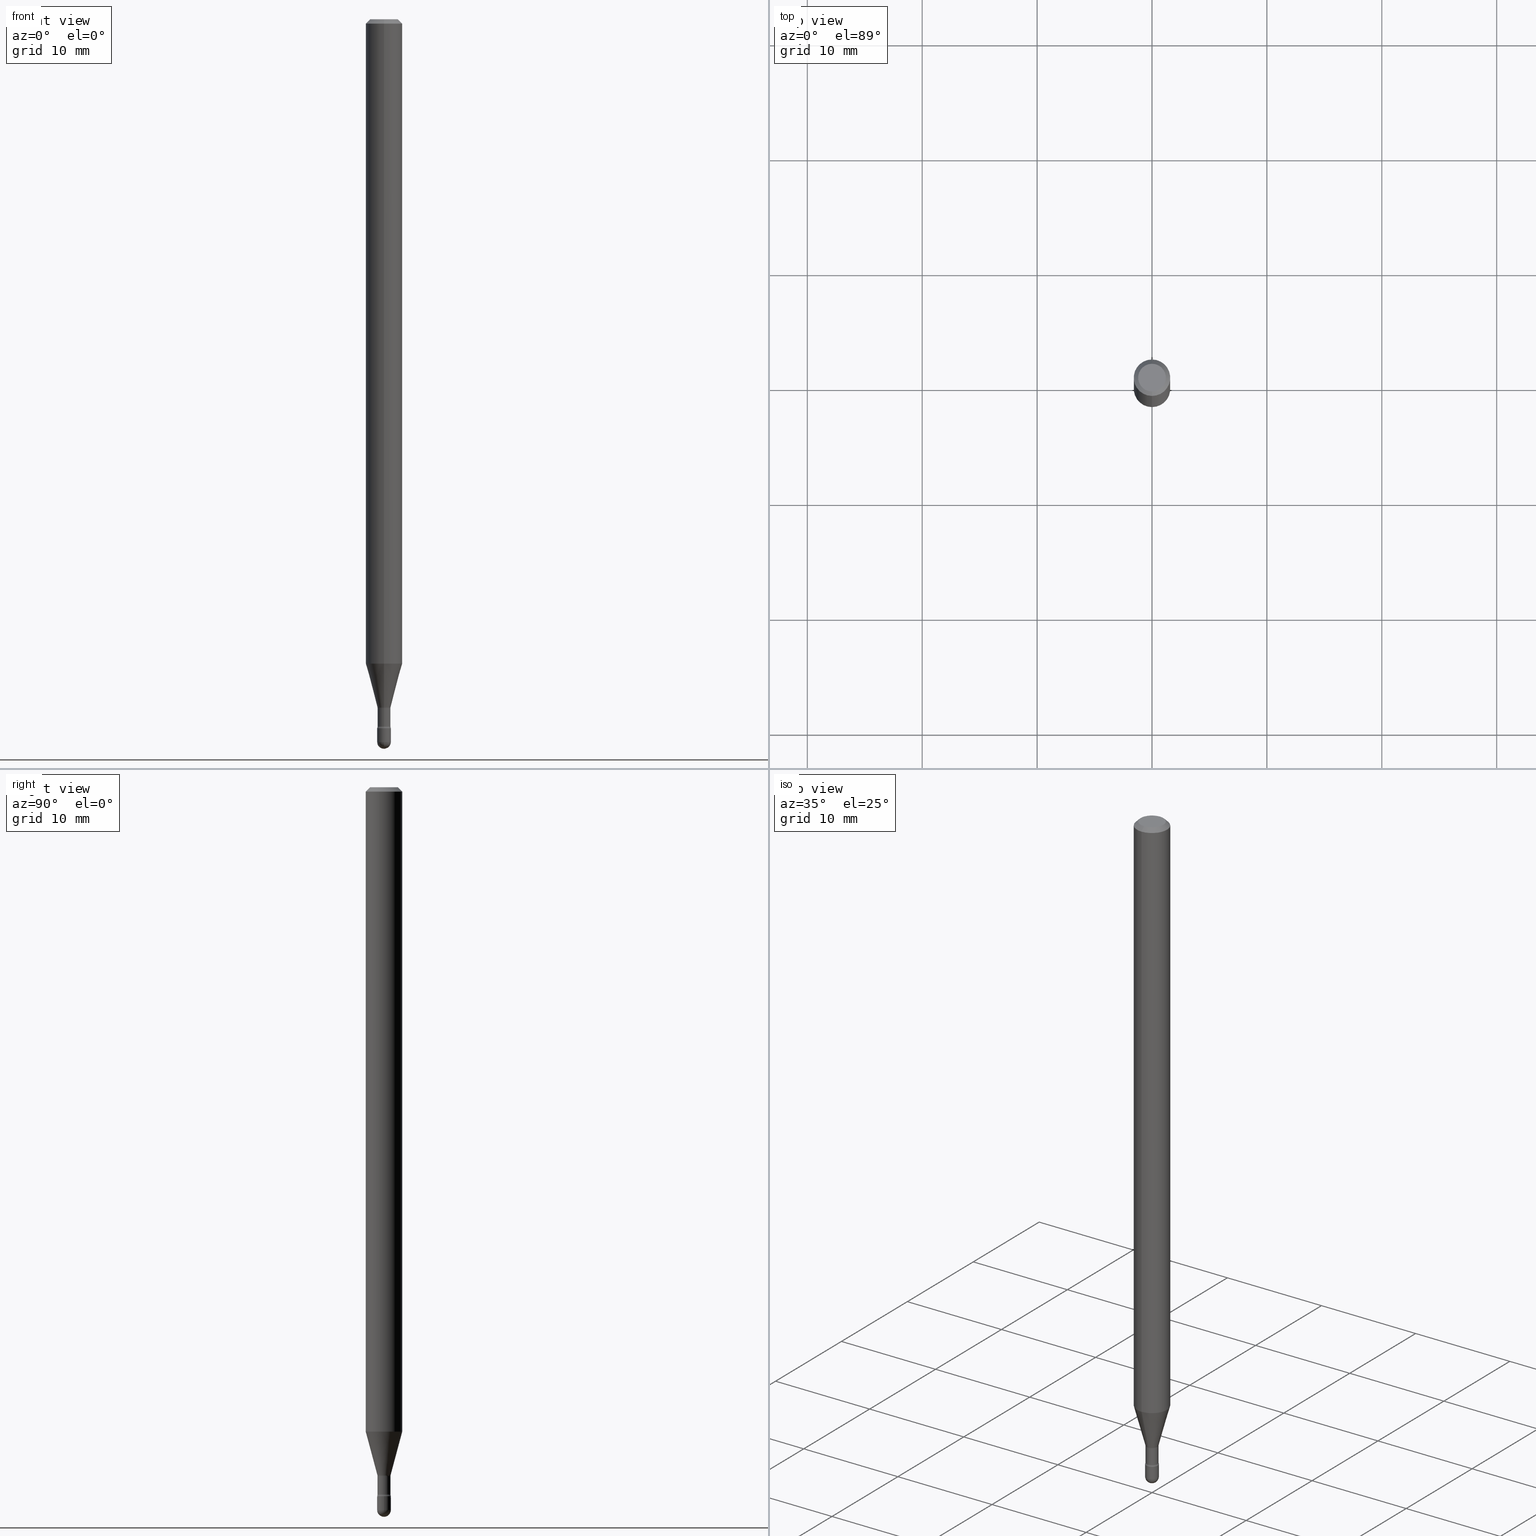
[diagram: canonical four-view strip — front | top / right | iso, engineering-drawing reading convention]
A machine part, canonical four-view strip (front | top / right | iso — engineering-drawing reading convention). The complete STEP part file that produces these views, byte-faithful:
ISO-10303-21;
HEADER;
FILE_DESCRIPTION (( 'STEP AP203' ),
    '1' );
FILE_NAME ('09473.STEP',
    '2024-04-09T23:35:01',
    ( '' ),
    ( '' ),
    'SwSTEP 2.0',
    'SolidWorks 2023',
    '' );
FILE_SCHEMA (( 'CONFIG_CONTROL_DESIGN' ));
ENDSEC;

DATA;
#1 = APPROVAL ( #215, 'UNSPECIFIED' ) ;
#2 = DIRECTION ( 'NONE',  ( 1.000000000000000000, -6.982962677686265922E-15, 4.876176775795935793E-29 ) ) ;
#3 = EDGE_LOOP ( 'NONE', ( #441, #417, #334, #363 ) ) ;
#4 = EDGE_CURVE ( 'NONE', #443, #472, #119, .T. ) ;
#5 = AXIS2_PLACEMENT_3D ( 'NONE', #219, #269, #136 ) ;
#6 = AXIS2_PLACEMENT_3D ( 'NONE', #392, #307, #483 ) ;
#7 = EDGE_LOOP ( 'NONE', ( #540, #252, #132, #71 ) ) ;
#8 = CONICAL_SURFACE ( 'NONE', #511, 0.06250000000000000000, 0.7853981633974483900 ) ;
#9 = DIRECTION ( 'NONE',  ( 1.000000000000000000, -6.982962677686227268E-15, 0.000000000000000000 ) ) ;
#10 = PERSON_AND_ORGANIZATION_ROLE ( 'classification_officer' ) ;
#11 = ORIENTED_EDGE ( 'NONE', *, *, #360, .F. ) ;
#12 = LINE ( 'NONE', #538, #322 ) ;
#13 = DATE_AND_TIME ( #53, #344 ) ;
#14 = EDGE_LOOP ( 'NONE', ( #107, #128, #210, #454 ) ) ;
#15 = EDGE_LOOP ( 'NONE', ( #320, #495, #312, #296 ) ) ;
#16 = CIRCLE ( 'NONE', #77, 0.02210000000000000159 ) ;
#17 = AXIS2_PLACEMENT_3D ( 'NONE', #41, #566, #76 ) ;
#18 = ORIENTED_EDGE ( 'NONE', *, *, #250, .F. ) ;
#19 = DIRECTION ( 'NONE',  ( -2.445468806185136597E-29, 3.491481338843145583E-15, 1.000000000000000000 ) ) ;
#20 = ORIENTED_EDGE ( 'NONE', *, *, #276, .T. ) ;
#21 = CARTESIAN_POINT ( 'NONE',  ( 2.023465601364097511E-45, -2.889165055145571576E-31, -8.274621583700891195E-17 ) ) ;
#22 = ORIENTED_EDGE ( 'NONE', *, *, #254, .T. ) ;
#23 = FACE_OUTER_BOUND ( 'NONE', #29, .T. ) ;
#24 = TOROIDAL_SURFACE ( 'NONE', #134, 0.03710000000000006348, 0.01499999999999999424 ) ;
#25 = VERTEX_POINT ( 'NONE', #99 ) ;
#26 = DIRECTION ( 'NONE',  ( -2.438088387897960049E-29, 3.491481338843145188E-15, 1.000000000000000000 ) ) ;
#27 = DIRECTION ( 'NONE',  ( -2.445456806742390166E-29, 3.491498522728124281E-15, 1.000000000000000000 ) ) ;
#28 = CC_DESIGN_PERSON_AND_ORGANIZATION_ASSIGNMENT ( #85, #422, ( #245 ) ) ;
#29 = EDGE_LOOP ( 'NONE', ( #152, #20 ) ) ;
#30 = EDGE_CURVE ( 'NONE', #377, #34, #435, .T. ) ;
#31 = PERSON ( 'UNSPECIFIED', 'UNSPECIFIED', 'UNSPECIFIED', ('UNSPECIFIED'), ('UNSPECIFIED'), ('UNSPECIFIED') ) ;
#32 = CARTESIAN_POINT ( 'NONE',  ( 1.669775429036828812E-16, 0.02349999999999151726, -2.429000000000000270 ) ) ;
#33 = CARTESIAN_POINT ( 'NONE',  ( 1.620037437533623579E-16, 0.02209999999999160900, -2.422672283192177645 ) ) ;
#34 = VERTEX_POINT ( 'NONE', #402 ) ;
#35 = CIRCLE ( 'NONE', #214, 0.01499999999999999424 ) ;
#36 = CC_DESIGN_APPROVAL ( #512, ( #187 ) ) ;
#37 = PERSON_AND_ORGANIZATION ( #31, #203 ) ;
#38 = ORIENTED_EDGE ( 'NONE', *, *, #154, .F. ) ;
#39 = PERSON_AND_ORGANIZATION ( #31, #203 ) ;
#40 = CARTESIAN_POINT ( 'NONE',  ( 5.924540425438438156E-29, -8.458756697819860632E-15, -2.422672283192177645 ) ) ;
#41 = CARTESIAN_POINT ( 'NONE',  ( 5.940014583577266287E-29, -8.480849911706614347E-15, -2.429000000000000270 ) ) ;
#42 = CONICAL_SURFACE ( 'NONE', #323, 0.02261111260566397996, 0.2617993877991501850 ) ;
#43 = AXIS2_PLACEMENT_3D ( 'NONE', #465, #382, #488 ) ;
#44 = DIRECTION ( 'NONE',  ( -6.982962677686265922E-15, -1.000000000000000000, 3.491498522728124281E-15 ) ) ;
#45 = EDGE_CURVE ( 'NONE', #362, #550, #175, .T. ) ;
#46 = ADVANCED_FACE ( 'NONE', ( #359 ), #543, .T. ) ;
#47 = CARTESIAN_POINT ( 'NONE',  ( -1.169113584055446105E-44, 1.669184350826100908E-30, 4.780733988912460139E-16 ) ) ;
#48 = ORIENTED_EDGE ( 'NONE', *, *, #68, .F. ) ;
#49 = CC_DESIGN_PERSON_AND_ORGANIZATION_ASSIGNMENT ( #39, #562, ( #106 ) ) ;
#50 = AXIS2_PLACEMENT_3D ( 'NONE', #530, #141, #44 ) ;
#51 = ORIENTED_EDGE ( 'NONE', *, *, #338, .F. ) ;
#52 = DIRECTION ( 'NONE',  ( -6.982962677686266711E-15, -1.000000000000000000, 3.491498522728124676E-15 ) ) ;
#53 = CALENDAR_DATE ( 2024, 9, 4 ) ;
#54 = ORIENTED_EDGE ( 'NONE', *, *, #293, .F. ) ;
#55 = CARTESIAN_POINT ( 'NONE',  ( -4.364351673553912750E-16, -0.06250000000000005551, -0.01499999999999986587 ) ) ;
#56 = FACE_OUTER_BOUND ( 'NONE', #14, .T. ) ;
#57 = ORIENTED_EDGE ( 'NONE', *, *, #458, .F. ) ;
#58 = DIRECTION ( 'NONE',  ( -2.445456806742389886E-29, 3.491498522728124281E-15, 1.000000000000000000 ) ) ;
#59 = AXIS2_PLACEMENT_3D ( 'NONE', #541, #144, #275 ) ;
#60 =( GEOMETRIC_REPRESENTATION_CONTEXT ( 3 ) GLOBAL_UNCERTAINTY_ASSIGNED_CONTEXT ( ( #332 ) ) GLOBAL_UNIT_ASSIGNED_CONTEXT ( ( #241, #179, #346 ) ) REPRESENTATION_CONTEXT ( 'NONE', 'WORKASPACE' ) );
#61 = ORIENTED_EDGE ( 'NONE', *, *, #429, .T. ) ;
#62 = ORIENTED_EDGE ( 'NONE', *, *, #75, .T. ) ;
#63 = CYLINDRICAL_SURFACE ( 'NONE', #527, 0.02210000000000003628 ) ;
#64 = ORIENTED_EDGE ( 'NONE', *, *, #45, .F. ) ;
#65 = PLANE ( 'NONE',  #166 ) ;
#66 = ADVANCED_FACE ( 'NONE', ( #56 ), #194, .T. ) ;
#67 = DIRECTION ( 'NONE',  ( 1.000000000000000000, -6.982962677686265922E-15, 4.876176775795935793E-29 ) ) ;
#68 = EDGE_CURVE ( 'NONE', #232, #190, #133, .T. ) ;
#69 = AXIS2_PLACEMENT_3D ( 'NONE', #235, #405, #150 ) ;
#70 = AXIS2_PLACEMENT_3D ( 'NONE', #40, #563, #174 ) ;
#71 = ORIENTED_EDGE ( 'NONE', *, *, #331, .F. ) ;
#72 = ORIENTED_EDGE ( 'NONE', *, *, #514, .F. ) ;
#73 = FACE_OUTER_BOUND ( 'NONE', #201, .T. ) ;
#74 = EDGE_LOOP ( 'NONE', ( #140, #198, #409, #329 ) ) ;
#75 = EDGE_CURVE ( 'NONE', #420, #25, #271, .T. ) ;
#76 = DIRECTION ( 'NONE',  ( -6.982962677686265922E-15, -1.000000000000000000, 0.000000000000000000 ) ) ;
#77 = AXIS2_PLACEMENT_3D ( 'NONE', #317, #104, #376 ) ;
#78 = CIRCLE ( 'NONE', #436, 0.01499999999999999424 ) ;
#79 = DIRECTION ( 'NONE',  ( -2.445468806185136597E-29, 3.491481338843145583E-15, 1.000000000000000000 ) ) ;
#80 = DIRECTION ( 'NONE',  ( 7.105427357601001859E-15, 1.000000000000000000, 0.000000000000000000 ) ) ;
#81 = AXIS2_PLACEMENT_3D ( 'NONE', #165, #292, #204 ) ;
#82 = APPROVAL_DATE_TIME ( #470, #1 ) ;
#83 = DIRECTION ( 'NONE',  ( -2.445456806742390166E-29, 3.491498522728124281E-15, 1.000000000000000000 ) ) ;
#84 = CARTESIAN_POINT ( 'NONE',  ( 2.636113549670549604E-16, 0.03709999999999176457, -2.360974787463811175 ) ) ;
#85 = PERSON_AND_ORGANIZATION ( #31, #203 ) ;
#86 = LINE ( 'NONE', #217, #249 ) ;
#87 = FACE_OUTER_BOUND ( 'NONE', #3, .T. ) ;
#88 = DIRECTION ( 'NONE',  ( -2.445456806742390166E-29, 3.491498522728124281E-15, 1.000000000000000000 ) ) ;
#89 = CC_DESIGN_PERSON_AND_ORGANIZATION_ASSIGNMENT ( #397, #10, ( #187 ) ) ;
#90 = DIRECTION ( 'NONE',  ( -2.445456806742390166E-29, 3.491498522728124281E-15, 1.000000000000000000 ) ) ;
#91 = AXIS2_PLACEMENT_3D ( 'NONE', #256, #379, #502 ) ;
#92 = CYLINDRICAL_SURFACE ( 'NONE', #298, 0.06250000000000000000 ) ;
#93 = CARTESIAN_POINT ( 'NONE',  ( -1.640996229255678655E-16, -0.02350000000000847938, -2.429000000000000270 ) ) ;
#94 = CARTESIAN_POINT ( 'NONE',  ( 1.570299446030415141E-16, 0.02209999999999175818, -2.360974787463811175 ) ) ;
#95 = DIRECTION ( 'NONE',  ( 6.982962677686265922E-15, 1.000000000000000000, -3.483106191921935554E-15 ) ) ;
#96 = COORDINATED_UNIVERSAL_TIME_OFFSET ( 5, 0, .BEHIND. ) ;
#97 = CLOSED_SHELL ( 'NONE', ( #374, #505, #108, #343, #442, #191, #486, #135, #66, #355, #548, #345, #290, #183 ) ) ;
#98 = AXIS2_PLACEMENT_3D ( 'NONE', #506, #478, #2 ) ;
#99 = CARTESIAN_POINT ( 'NONE',  ( 4.440892098501169490E-16, 0.06249999999999995837, -0.01500000000000030129 ) ) ;
#100 = DIRECTION ( 'NONE',  ( -2.445468806185136597E-29, 3.491481338843145583E-15, 1.000000000000000000 ) ) ;
#101 = DATE_AND_TIME ( #193, #139 ) ;
#102 = DIRECTION ( 'NONE',  ( 2.445456806742390166E-29, -3.491498522728124281E-15, -1.000000000000000000 ) ) ;
#103 = DIRECTION ( 'NONE',  ( -2.445468806185136597E-29, 3.491481338843145583E-15, 1.000000000000000000 ) ) ;
#104 = DIRECTION ( 'NONE',  ( -2.445456806742390166E-29, 3.491498522728124281E-15, 1.000000000000000000 ) ) ;
#105 = EDGE_LOOP ( 'NONE', ( #411, #424, #51, #368, #287 ) ) ;
#106 = PRODUCT_DEFINITION ( 'UNKNOWN', '', #529, #504 ) ;
#107 = ORIENTED_EDGE ( 'NONE', *, *, #233, .F. ) ;
#108 = ADVANCED_FACE ( 'NONE', ( #408 ), #259, .F. ) ;
#109 = VECTOR ( 'NONE', #58, 39.37007874015748143 ) ;
#110 = DIRECTION ( 'NONE',  ( 6.982962677686265922E-15, 1.000000000000000000, -3.483106191921935554E-15 ) ) ;
#111 = CONICAL_SURFACE ( 'NONE', #291, 0.02261111260566397996, 0.2617993877991501850 ) ;
#112 = VERTEX_POINT ( 'NONE', #223 ) ;
#113 = CARTESIAN_POINT ( 'NONE',  ( 5.773690194932333551E-29, -8.243299411909058150E-15, -2.360974787463811175 ) ) ;
#114 = ORIENTED_EDGE ( 'NONE', *, *, #429, .F. ) ;
#115 = DIRECTION ( 'NONE',  ( -6.982962677686265922E-15, -1.000000000000000000, 0.000000000000000000 ) ) ;
#116 = CARTESIAN_POINT ( 'NONE',  ( 6.056203498517491033E-29, -8.646653535645050331E-15, -2.476500000000000146 ) ) ;
#117 = VERTEX_POINT ( 'NONE', #94 ) ;
#118 = DIRECTION ( 'NONE',  ( -2.445456806742389886E-29, 3.491498522728124281E-15, 1.000000000000000000 ) ) ;
#119 = CIRCLE ( 'NONE', #352, 0.02350000000000000699 ) ;
#120 = ORIENTED_EDGE ( 'NONE', *, *, #400, .T. ) ;
#121 = CARTESIAN_POINT ( 'NONE',  ( 5.764167902617136979E-29, -8.229784987923804160E-15, -2.357092501787273253 ) ) ;
#122 = CARTESIAN_POINT ( 'NONE',  ( -1.169113584055446105E-44, 1.669184350826100908E-30, 4.780733988912460139E-16 ) ) ;
#123 = DIRECTION ( 'NONE',  ( -6.982962677686265922E-15, -1.000000000000000000, 3.483106191921935554E-15 ) ) ;
#124 = CARTESIAN_POINT ( 'NONE',  ( 6.056203498517492154E-29, -8.646653535645053486E-15, -2.476500000000000590 ) ) ;
#125 = CARTESIAN_POINT ( 'NONE',  ( 0.02350000000000000699, -8.727830476773153796E-15, -2.476500000000000590 ) ) ;
#126 = DIRECTION ( 'NONE',  ( 1.000000000000000000, 0.000000000000000000, 0.000000000000000000 ) ) ;
#127 = CARTESIAN_POINT ( 'NONE',  ( 4.440892098501163573E-16, 0.06249999999999226313, -2.208225147374218267 ) ) ;
#128 = ORIENTED_EDGE ( 'NONE', *, *, #234, .F. ) ;
#129 = CARTESIAN_POINT ( 'NONE',  ( 5.940043730223697314E-29, -8.480808172050001970E-15, -2.429000000000000270 ) ) ;
#130 = COORDINATED_UNIVERSAL_TIME_OFFSET ( 5, 0, .BEHIND. ) ;
#131 = LINE ( 'NONE', #481, #536 ) ;
#132 = ORIENTED_EDGE ( 'NONE', *, *, #349, .F. ) ;
#133 = CIRCLE ( 'NONE', #69, 0.02349999999999995148 ) ;
#134 = AXIS2_PLACEMENT_3D ( 'NONE', #459, #27, #199 ) ;
#135 = ADVANCED_FACE ( 'NONE', ( #87 ), #92, .T. ) ;
#136 = DIRECTION ( 'NONE',  ( -6.982962677686265922E-15, -1.000000000000000000, 4.370956789862821150E-15 ) ) ;
#137 = CARTESIAN_POINT ( 'NONE',  ( 2.636113549670568339E-16, 0.03709999999999160497, -2.422672283192177645 ) ) ;
#138 = CIRCLE ( 'NONE', #289, 0.02350000000000000352 ) ;
#139 = LOCAL_TIME ( 19, 35, 1.000000000000000000, #173 ) ;
#140 = ORIENTED_EDGE ( 'NONE', *, *, #407, .F. ) ;
#141 = DIRECTION ( 'NONE',  ( -2.445456806742389886E-29, 3.491498522728124281E-15, 1.000000000000000000 ) ) ;
#142 = ORIENTED_EDGE ( 'NONE', *, *, #476, .F. ) ;
#143 = DATE_TIME_ROLE ( 'classification_date' ) ;
#144 = DIRECTION ( 'NONE',  ( -1.000000000000000000, 6.982962677686265922E-15, -4.883557194083112340E-29 ) ) ;
#145 = SHAPE_DEFINITION_REPRESENTATION ( #560, #337 ) ;
#146 = CIRCLE ( 'NONE', #305, 0.02350000000000000699 ) ;
#147 = AXIS2_PLACEMENT_3D ( 'NONE', #474, #88, #222 ) ;
#148 = DIRECTION ( 'NONE',  ( 6.982962677686265922E-15, 1.000000000000000000, 0.000000000000000000 ) ) ;
#149 = DIRECTION ( 'NONE',  ( 1.839019923739599526E-15, 0.2588190451025248473, 0.9659258262890670910 ) ) ;
#150 = DIRECTION ( 'NONE',  ( 6.982962677686265922E-15, 1.000000000000000000, 0.000000000000000000 ) ) ;
#151 = EDGE_CURVE ( 'NONE', #377, #414, #227, .T. ) ;
#152 = ORIENTED_EDGE ( 'NONE', *, *, #234, .T. ) ;
#153 = DIRECTION ( 'NONE',  ( -1.000000000000000000, 6.982962677686265922E-15, -4.883557194083111780E-29 ) ) ;
#154 = EDGE_CURVE ( 'NONE', #280, #318, #510, .T. ) ;
#155 = APPROVAL_PERSON_ORGANIZATION ( #37, #1, #385 ) ;
#156 = DIRECTION ( 'NONE',  ( -6.982962677686265922E-15, -1.000000000000000000, 4.370956789862821150E-15 ) ) ;
#157 = CC_DESIGN_SECURITY_CLASSIFICATION ( #187, ( #529 ) ) ;
#158 = ORIENTED_EDGE ( 'NONE', *, *, #349, .T. ) ;
#159 = FACE_OUTER_BOUND ( 'NONE', #15, .T. ) ;
#160 = SPHERICAL_SURFACE ( 'NONE', #554, 0.02349999999999995148 ) ;
#161 = EDGE_LOOP ( 'NONE', ( #18, #120, #434, #519 ) ) ;
#162 = ORIENTED_EDGE ( 'NONE', *, *, #407, .T. ) ;
#163 = DIRECTION ( 'NONE',  ( -6.982962677686265133E-15, -1.000000000000000000, 0.000000000000000000 ) ) ;
#164 = EDGE_CURVE ( 'NONE', #449, #550, #35, .T. ) ;
#165 = CARTESIAN_POINT ( 'NONE',  ( 6.056203498517491033E-29, -8.646653535645050331E-15, -2.476500000000000146 ) ) ;
#166 = AXIS2_PLACEMENT_3D ( 'NONE', #129, #26, #381 ) ;
#167 = CARTESIAN_POINT ( 'NONE',  ( 3.840629472727447874E-16, 0.04749999999999999362, -2.485923956665947867E-16 ) ) ;
#168 = AXIS2_PLACEMENT_3D ( 'NONE', #315, #100, #440 ) ;
#169 = MANIFOLD_SOLID_BREP ( 'Body-Move/Copy2[2]', #97 ) ;
#170 = MANIFOLD_SOLID_BREP ( 'Body-Move/Copy2[1]', #406 ) ;
#171 = CARTESIAN_POINT ( 'NONE',  ( 0.02350000000000000352, -8.644907794975628038E-15, -2.429000000000000270 ) ) ;
#172 = DIRECTION ( 'NONE',  ( 7.105427357601001859E-15, 1.000000000000000000, 0.000000000000000000 ) ) ;
#173 = COORDINATED_UNIVERSAL_TIME_OFFSET ( 5, 0, .BEHIND. ) ;
#174 = DIRECTION ( 'NONE',  ( -6.982962677686265133E-15, -1.000000000000000000, 0.000000000000000000 ) ) ;
#175 = CIRCLE ( 'NONE', #415, 0.02350000000000000352 ) ;
#176 = CC_DESIGN_DATE_AND_TIME_ASSIGNMENT ( #357, #143, ( #187 ) ) ;
#177 = CIRCLE ( 'NONE', #70, 0.02210000000000007098 ) ;
#178 = ADVANCED_FACE ( 'NONE', ( #520 ), #65, .T. ) ;
#179 =( NAMED_UNIT ( * ) PLANE_ANGLE_UNIT ( ) SI_UNIT ( $, .RADIAN. ) );
#180 = DIRECTION ( 'NONE',  ( -2.445468806185136877E-29, 3.491481338843145188E-15, 1.000000000000000000 ) ) ;
#181 = FACE_OUTER_BOUND ( 'NONE', #373, .T. ) ;
#182 =( LENGTH_UNIT ( ) NAMED_UNIT ( * ) SI_UNIT ( $, .METRE. ) );
#183 = ADVANCED_FACE ( 'NONE', ( #73 ), #369, .F. ) ;
#184 = PERSON_AND_ORGANIZATION ( #31, #203 ) ;
#185 = DIRECTION ( 'NONE',  ( -2.445468806185136877E-29, 3.491481338843145188E-15, 1.000000000000000000 ) ) ;
#186 = EDGE_LOOP ( 'NONE', ( #308, #205 ) ) ;
#187 = SECURITY_CLASSIFICATION ( '', '', #493 ) ;
#188 = EDGE_CURVE ( 'NONE', #278, #117, #375, .T. ) ;
#189 = COORDINATED_UNIVERSAL_TIME_OFFSET ( 5, 0, .BEHIND. ) ;
#190 = VERTEX_POINT ( 'NONE', #288 ) ;
#191 = ADVANCED_FACE ( 'NONE', ( #456 ), #42, .T. ) ;
#192 = DIRECTION ( 'NONE',  ( -2.445456806742390166E-29, 3.491498522728124281E-15, 1.000000000000000000 ) ) ;
#193 = CALENDAR_DATE ( 2024, 9, 4 ) ;
#194 = CONICAL_SURFACE ( 'NONE', #272, 0.06250000000000000000, 0.7853981633974483900 ) ;
#195 = EDGE_LOOP ( 'NONE', ( #142, #285, #242, #61 ) ) ;
#196 = ORIENTED_EDGE ( 'NONE', *, *, #263, .T. ) ;
#197 = CARTESIAN_POINT ( 'NONE',  ( 6.056203498517492154E-29, -8.646653535645053486E-15, -2.476500000000000590 ) ) ;
#198 = ORIENTED_EDGE ( 'NONE', *, *, #476, .T. ) ;
#199 = DIRECTION ( 'NONE',  ( -6.982962677686265922E-15, -1.000000000000000000, 3.491498522728124281E-15 ) ) ;
#200 = CARTESIAN_POINT ( 'NONE',  ( -0.02350000000000000352, -8.396753310943903641E-15, -2.429000000000000270 ) ) ;
#201 = EDGE_LOOP ( 'NONE', ( #57, #388, #237, #22 ) ) ;
#202 = AXIS2_PLACEMENT_3D ( 'NONE', #124, #482, #9 ) ;
#203 = ORGANIZATION ( 'UNSPECIFIED', 'UNSPECIFIED', '' ) ;
#204 = DIRECTION ( 'NONE',  ( -7.105427357601001070E-15, -1.000000000000000000, 0.000000000000000000 ) ) ;
#205 = ORIENTED_EDGE ( 'NONE', *, *, #154, .T. ) ;
#206 = EDGE_CURVE ( 'NONE', #190, #112, #394, .T. ) ;
#207 = CARTESIAN_POINT ( 'NONE',  ( 5.400119217465999083E-29, -7.710014839908176533E-15, -2.208225147374217823 ) ) ;
#208 = DIRECTION ( 'NONE',  ( -1.000000000000000000, 6.982962677686265922E-15, -4.883557194083111780E-29 ) ) ;
#209 = ORIENTED_EDGE ( 'NONE', *, *, #188, .F. ) ;
#210 = ORIENTED_EDGE ( 'NONE', *, *, #360, .T. ) ;
#211 = FACE_OUTER_BOUND ( 'NONE', #533, .T. ) ;
#212 = EDGE_CURVE ( 'NONE', #112, #280, #270, .T. ) ;
#213 = CARTESIAN_POINT ( 'NONE',  ( -1.578925554262553659E-16, -0.02261111260567220949, -2.357092501787273253 ) ) ;
#214 = AXIS2_PLACEMENT_3D ( 'NONE', #253, #378, #163 ) ;
#215 = APPROVAL_STATUS ( 'not_yet_approved' ) ;
#216 = EDGE_CURVE ( 'NONE', #420, #230, #238, .T. ) ;
#217 = CARTESIAN_POINT ( 'NONE',  ( 0.02350000000000000352, -1.640996229256272766E-16, 1.145901542312045115E-30 ) ) ;
#218 = CC_DESIGN_DATE_AND_TIME_ASSIGNMENT ( #101, #532, ( #106 ) ) ;
#219 = CARTESIAN_POINT ( 'NONE',  ( 5.400119217465999083E-29, -7.710014839908176533E-15, -2.208225147374217823 ) ) ;
#220 = AXIS2_PLACEMENT_3D ( 'NONE', #21, #419, #286 ) ;
#221 = CARTESIAN_POINT ( 'NONE',  ( -4.364351673553378297E-16, -0.06250000000000772993, -2.208225147374217823 ) ) ;
#222 = DIRECTION ( 'NONE',  ( -6.982962677686265133E-15, -1.000000000000000000, 0.000000000000000000 ) ) ;
#223 = CARTESIAN_POINT ( 'NONE',  ( -0.02350000000000000699, -8.396753310943903641E-15, -2.476500000000000590 ) ) ;
#224 = DIRECTION ( 'NONE',  ( -4.851104656540964275E-15, -0.7071067811865500152, -0.7071067811865450192 ) ) ;
#225 = ORIENTED_EDGE ( 'NONE', *, *, #365, .F. ) ;
#226 = CARTESIAN_POINT ( 'NONE',  ( 0.000000000000000000, 0.000000000000000000, 0.000000000000000000 ) ) ;
#227 = CIRCLE ( 'NONE', #545, 0.02261111260566397996 ) ;
#228 = CIRCLE ( 'NONE', #147, 0.02210000000000007098 ) ;
#229 = PERSON_AND_ORGANIZATION_ROLE ( 'design_supplier' ) ;
#230 = VERTEX_POINT ( 'NONE', #221 ) ;
#231 = PERSON_AND_ORGANIZATION_ROLE ( 'creator' ) ;
#232 = VERTEX_POINT ( 'NONE', #348 ) ;
#233 = EDGE_CURVE ( 'NONE', #544, #531, #302, .T. ) ;
#234 = EDGE_CURVE ( 'NONE', #258, #544, #564, .T. ) ;
#235 = CARTESIAN_POINT ( 'NONE',  ( 6.056203498517491033E-29, -8.646653535645050331E-15, -2.476500000000000146 ) ) ;
#236 = DIRECTION ( 'NONE',  ( 1.000000000000000000, -6.982962677686269866E-15, 0.000000000000000000 ) ) ;
#237 = ORIENTED_EDGE ( 'NONE', *, *, #30, .T. ) ;
#238 = CIRCLE ( 'NONE', #5, 0.06250000000000000000 ) ;
#239 = AXIS2_PLACEMENT_3D ( 'NONE', #207, #367, #156 ) ;
#240 = ORIENTED_EDGE ( 'NONE', *, *, #4, .T. ) ;
#241 =( CONVERSION_BASED_UNIT ( 'INCH', #279 ) LENGTH_UNIT ( ) NAMED_UNIT ( #463 ) );
#242 = ORIENTED_EDGE ( 'NONE', *, *, #164, .T. ) ;
#243 = EDGE_LOOP ( 'NONE', ( #114, #64 ) ) ;
#244 = FACE_OUTER_BOUND ( 'NONE', #283, .T. ) ;
#245 = PRODUCT ( '09473', '09473', '', ( #561 ) ) ;
#246 = DIRECTION ( 'NONE',  ( -6.982962677686265922E-15, -1.000000000000000000, 3.491498522728123492E-15 ) ) ;
#247 = ORIENTED_EDGE ( 'NONE', *, *, #525, .F. ) ;
#248 = VECTOR ( 'NONE', #180, 39.37007874015748143 ) ;
#249 = VECTOR ( 'NONE', #185, 39.37007874015748143 ) ;
#250 = EDGE_CURVE ( 'NONE', #414, #420, #12, .T. ) ;
#251 = CARTESIAN_POINT ( 'NONE',  ( -1.169113584055446105E-44, 1.669184350826100908E-30, 4.780733988912460139E-16 ) ) ;
#252 = ORIENTED_EDGE ( 'NONE', *, *, #250, .T. ) ;
#253 = CARTESIAN_POINT ( 'NONE',  ( -2.590679153421016779E-16, -0.03710000000000852199, -2.422672283192177645 ) ) ;
#254 = EDGE_CURVE ( 'NONE', #34, #117, #16, .T. ) ;
#255 = ADVANCED_FACE ( 'NONE', ( #340 ), #160, .T. ) ;
#256 = CARTESIAN_POINT ( 'NONE',  ( 3.316907271900976096E-16, 0.04749999999999999362, 3.181741169753270705E-17 ) ) ;
#257 = DIRECTION ( 'NONE',  ( -2.445456806742390166E-29, 3.491498522728124281E-15, 1.000000000000000000 ) ) ;
#258 = VERTEX_POINT ( 'NONE', #167 ) ;
#259 = TOROIDAL_SURFACE ( 'NONE', #6, 0.03710000000000006348, 0.01499999999999999424 ) ;
#260 = CIRCLE ( 'NONE', #81, 0.02349999999999995148 ) ;
#261 = EDGE_CURVE ( 'NONE', #117, #34, #389, .T. ) ;
#262 = CARTESIAN_POINT ( 'NONE',  ( 5.940043730223697314E-29, -8.480808172050001970E-15, -2.429000000000000270 ) ) ;
#263 = EDGE_CURVE ( 'NONE', #112, #443, #146, .T. ) ;
#264 = DIRECTION ( 'NONE',  ( -2.445456806742389886E-29, 3.491498522728124281E-15, 1.000000000000000000 ) ) ;
#265 = DIRECTION ( 'NONE',  ( 1.000000000000000000, -7.105427357601001070E-15, 4.926315718983979931E-29 ) ) ;
#266 = VECTOR ( 'NONE', #224, 39.37007874015748143 ) ;
#267 = CC_DESIGN_APPROVAL ( #1, ( #106 ) ) ;
#268 = DIRECTION ( 'NONE',  ( -6.982962677686265922E-15, -1.000000000000000000, 0.000000000000000000 ) ) ;
#269 = DIRECTION ( 'NONE',  ( -2.445456806742390166E-29, 3.491498522728124281E-15, 1.000000000000000000 ) ) ;
#270 = LINE ( 'NONE', #342, #248 ) ;
#271 = LINE ( 'NONE', #444, #109 ) ;
#272 = AXIS2_PLACEMENT_3D ( 'NONE', #316, #102, #95 ) ;
#273 = LOCAL_TIME ( 19, 35, 1.000000000000000000, #189 ) ;
#274 = CALENDAR_DATE ( 2024, 9, 4 ) ;
#275 = DIRECTION ( 'NONE',  ( -6.982962677686263555E-15, -1.000000000000000000, 0.000000000000000000 ) ) ;
#276 = EDGE_CURVE ( 'NONE', #544, #258, #455, .T. ) ;
#277 = ORIENTED_EDGE ( 'NONE', *, *, #261, .F. ) ;
#278 = VERTEX_POINT ( 'NONE', #33 ) ;
#279 = LENGTH_MEASURE_WITH_UNIT ( LENGTH_MEASURE( 0.02539999999999999897 ), #182 );
#280 = VERTEX_POINT ( 'NONE', #200 ) ;
#281 = APPROVAL_PERSON_ORGANIZATION ( #311, #512, #489 ) ;
#282 = FACE_OUTER_BOUND ( 'NONE', #547, .T. ) ;
#283 = EDGE_LOOP ( 'NONE', ( #522, #319, #433, #11 ) ) ;
#284 = LINE ( 'NONE', #450, #537 ) ;
#285 = ORIENTED_EDGE ( 'NONE', *, *, #430, .F. ) ;
#286 = DIRECTION ( 'NONE',  ( -6.982962677686266711E-15, -1.000000000000000000, 3.491498522728124676E-15 ) ) ;
#287 = ORIENTED_EDGE ( 'NONE', *, *, #525, .T. ) ;
#288 = CARTESIAN_POINT ( 'NONE',  ( 1.640996229256876491E-16, 0.02349999999999132991, -2.476500000000000590 ) ) ;
#289 = AXIS2_PLACEMENT_3D ( 'NONE', #387, #103, #236 ) ;
#290 = ADVANCED_FACE ( 'NONE', ( #451 ), #63, .T. ) ;
#291 = AXIS2_PLACEMENT_3D ( 'NONE', #475, #90, #268 ) ;
#292 = DIRECTION ( 'NONE',  ( -1.000000000000000000, 7.105427357601001070E-15, -4.926315508542082329E-29 ) ) ;
#293 = EDGE_CURVE ( 'NONE', #449, #34, #413, .T. ) ;
#294 = CYLINDRICAL_SURFACE ( 'NONE', #43, 0.02210000000000003628 ) ;
#295 = CARTESIAN_POINT ( 'NONE',  ( 6.056203498517492154E-29, -8.646653535645053486E-15, -2.476500000000000590 ) ) ;
#296 = ORIENTED_EDGE ( 'NONE', *, *, #30, .F. ) ;
#297 = CALENDAR_DATE ( 2024, 9, 4 ) ;
#298 = AXIS2_PLACEMENT_3D ( 'NONE', #47, #310, #427 ) ;
#299 = AXIS2_PLACEMENT_3D ( 'NONE', #122, #462, #347 ) ;
#300 = CARTESIAN_POINT ( 'NONE',  ( -1.543234751768077413E-16, -0.02210000000000852949, -2.422672283192177645 ) ) ;
#301 = APPLICATION_PROTOCOL_DEFINITION ( 'international standard', 'config_control_design', 1994, #480 ) ;
#302 = LINE ( 'NONE', #432, #266 ) ;
#303 = FACE_OUTER_BOUND ( 'NONE', #161, .T. ) ;
#304 = CARTESIAN_POINT ( 'NONE',  ( 3.023754139721279785E-16, 0.02261111260565575043, -2.357092501787273253 ) ) ;
#305 = AXIS2_PLACEMENT_3D ( 'NONE', #295, #467, #328 ) ;
#306 = CIRCLE ( 'NONE', #457, 0.01500000000000002720 ) ;
#307 = DIRECTION ( 'NONE',  ( -2.445456806742390166E-29, 3.491498522728124281E-15, 1.000000000000000000 ) ) ;
#308 = ORIENTED_EDGE ( 'NONE', *, *, #338, .T. ) ;
#309 = DATE_AND_TIME ( #404, #471 ) ;
#310 = DIRECTION ( 'NONE',  ( -2.445456806742390166E-29, 3.491498522728124281E-15, 1.000000000000000000 ) ) ;
#311 = PERSON_AND_ORGANIZATION ( #31, #203 ) ;
#312 = ORIENTED_EDGE ( 'NONE', *, *, #261, .T. ) ;
#313 = FACE_OUTER_BOUND ( 'NONE', #105, .T. ) ;
#314 = AXIS2_PLACEMENT_3D ( 'NONE', #542, #445, #52 ) ;
#315 = CARTESIAN_POINT ( 'NONE',  ( 6.056203498517492154E-29, -8.646653535645053486E-15, -2.476500000000000590 ) ) ;
#316 = CARTESIAN_POINT ( 'NONE',  ( 3.668185210113605428E-31, -5.237247784092215166E-17, -0.01500000000000008271 ) ) ;
#317 = CARTESIAN_POINT ( 'NONE',  ( 5.773661864550544711E-29, -8.243339982628244289E-15, -2.360974787463811175 ) ) ;
#318 = VERTEX_POINT ( 'NONE', #171 ) ;
#319 = ORIENTED_EDGE ( 'NONE', *, *, #233, .T. ) ;
#320 = ORIENTED_EDGE ( 'NONE', *, *, #400, .F. ) ;
#321 = CYLINDRICAL_SURFACE ( 'NONE', #353, 0.02350000000000000352 ) ;
#322 = VECTOR ( 'NONE', #149, 39.37007874015748143 ) ;
#323 = AXIS2_PLACEMENT_3D ( 'NONE', #121, #555, #336 ) ;
#324 = CIRCLE ( 'NONE', #239, 0.06250000000000000000 ) ;
#325 = CARTESIAN_POINT ( 'NONE',  ( 3.668185210113605428E-31, -5.237247784092215166E-17, -0.01500000000000008271 ) ) ;
#326 = ORIENTED_EDGE ( 'NONE', *, *, #365, .T. ) ;
#327 = DIRECTION ( 'NONE',  ( -2.445456806742390166E-29, 3.491498522728124281E-15, 1.000000000000000000 ) ) ;
#328 = DIRECTION ( 'NONE',  ( 1.000000000000000000, -6.982962677686227268E-15, 0.000000000000000000 ) ) ;
#329 = ORIENTED_EDGE ( 'NONE', *, *, #164, .F. ) ;
#330 = DIRECTION ( 'NONE',  ( -6.982962677686265922E-15, -1.000000000000000000, 3.491498522728124281E-15 ) ) ;
#331 = EDGE_CURVE ( 'NONE', #377, #230, #131, .T. ) ;
#332 = UNCERTAINTY_MEASURE_WITH_UNIT (LENGTH_MEASURE( 1.000000000000000082E-05 ), #241, 'distance_accuracy_value', 'NONE');
#333 = PLANE ( 'NONE',  #91 ) ;
#334 = ORIENTED_EDGE ( 'NONE', *, *, #380, .T. ) ;
#335 = TOROIDAL_SURFACE ( 'NONE', #492, 0.03710000000000000797, 0.01500000000000003240 ) ;
#336 = DIRECTION ( 'NONE',  ( -6.982962677686265922E-15, -1.000000000000000000, 0.000000000000000000 ) ) ;
#337 = ADVANCED_BREP_SHAPE_REPRESENTATION ( '09473', ( #170, #169, #395 ), #60 ) ;
#338 = EDGE_CURVE ( 'NONE', #318, #280, #138, .T. ) ;
#339 = ADVANCED_FACE ( 'NONE', ( #313 ), #321, .T. ) ;
#340 = FACE_OUTER_BOUND ( 'NONE', #490, .T. ) ;
#341 = DIRECTION ( 'NONE',  ( 1.000000000000000000, -7.105427357601001070E-15, 4.926315718983979931E-29 ) ) ;
#342 = CARTESIAN_POINT ( 'NONE',  ( -0.02350000000000000352, 1.669775429036235687E-16, -1.155949746209903035E-30 ) ) ;
#343 = ADVANCED_FACE ( 'NONE', ( #244 ), #8, .T. ) ;
#344 = LOCAL_TIME ( 19, 35, 1.000000000000000000, #96 ) ;
#345 = ADVANCED_FACE ( 'NONE', ( #412 ), #24, .F. ) ;
#346 =( NAMED_UNIT ( * ) SI_UNIT ( $, .STERADIAN. ) SOLID_ANGLE_UNIT ( ) );
#347 = DIRECTION ( 'NONE',  ( -6.982962677686265922E-15, -1.000000000000000000, 3.491498522728124676E-15 ) ) ;
#348 = CARTESIAN_POINT ( 'NONE',  ( 6.114676835852627231E-29, -8.727264387118866723E-15, -2.500000000000000000 ) ) ;
#349 = EDGE_CURVE ( 'NONE', #230, #420, #324, .T. ) ;
#350 = CYLINDRICAL_SURFACE ( 'NONE', #299, 0.06250000000000000000 ) ;
#351 = PERSON_AND_ORGANIZATION ( #31, #203 ) ;
#352 = AXIS2_PLACEMENT_3D ( 'NONE', #197, #19, #487 ) ;
#353 = AXIS2_PLACEMENT_3D ( 'NONE', #226, #356, #67 ) ;
#354 = CARTESIAN_POINT ( 'NONE',  ( 3.668185210113605428E-31, -5.237247784092215166E-17, -0.01500000000000008271 ) ) ;
#355 = ADVANCED_FACE ( 'NONE', ( #23 ), #333, .F. ) ;
#356 = DIRECTION ( 'NONE',  ( -2.445468806185136597E-29, 3.491481338843145583E-15, 1.000000000000000000 ) ) ;
#357 = DATE_AND_TIME ( #274, #273 ) ;
#358 = ORIENTED_EDGE ( 'NONE', *, *, #430, .T. ) ;
#359 = FACE_OUTER_BOUND ( 'NONE', #552, .T. ) ;
#360 = EDGE_CURVE ( 'NONE', #258, #25, #508, .T. ) ;
#361 = APPROVAL_STATUS ( 'not_yet_approved' ) ;
#362 = VERTEX_POINT ( 'NONE', #32 ) ;
#363 = ORIENTED_EDGE ( 'NONE', *, *, #371, .F. ) ;
#364 = DIRECTION ( 'NONE',  ( -6.982962677686265922E-15, -1.000000000000000000, 0.000000000000000000 ) ) ;
#365 = EDGE_CURVE ( 'NONE', #232, #443, #260, .T. ) ;
#366 = EDGE_LOOP ( 'NONE', ( #209, #162, #528, #277 ) ) ;
#367 = DIRECTION ( 'NONE',  ( -2.445456806742390166E-29, 3.491498522728124281E-15, 1.000000000000000000 ) ) ;
#368 = ORIENTED_EDGE ( 'NONE', *, *, #391, .F. ) ;
#369 = TOROIDAL_SURFACE ( 'NONE', #383, 0.03710000000000000797, 0.01500000000000003240 ) ;
#370 = CIRCLE ( 'NONE', #168, 0.02350000000000000699 ) ;
#371 = EDGE_CURVE ( 'NONE', #25, #531, #416, .T. ) ;
#372 = CC_DESIGN_PERSON_AND_ORGANIZATION_ASSIGNMENT ( #351, #231, ( #529 ) ) ;
#373 = EDGE_LOOP ( 'NONE', ( #158, #62, #72, #500 ) ) ;
#374 = ADVANCED_FACE ( 'NONE', ( #159 ), #335, .F. ) ;
#375 = LINE ( 'NONE', #507, #477 ) ;
#376 = DIRECTION ( 'NONE',  ( -6.982962677686265922E-15, -1.000000000000000000, 0.000000000000000000 ) ) ;
#377 = VERTEX_POINT ( 'NONE', #213 ) ;
#378 = DIRECTION ( 'NONE',  ( -1.000000000000000000, 6.982962677686265922E-15, -4.883557194083112340E-29 ) ) ;
#379 = DIRECTION ( 'NONE',  ( 2.445456806742389886E-29, -3.491498522728124281E-15, -1.000000000000000000 ) ) ;
#380 = EDGE_CURVE ( 'NONE', #230, #531, #284, .T. ) ;
#381 = DIRECTION ( 'NONE',  ( 1.000000000000000000, -6.982962677686265922E-15, 4.876176775795935793E-29 ) ) ;
#382 = DIRECTION ( 'NONE',  ( -2.445456806742390166E-29, 3.491498522728124281E-15, 1.000000000000000000 ) ) ;
#383 = AXIS2_PLACEMENT_3D ( 'NONE', #468, #551, #330 ) ;
#384 = DIRECTION ( 'NONE',  ( -6.982962677686265922E-15, -1.000000000000000000, 3.491498522728124281E-15 ) ) ;
#385 = APPROVAL_ROLE ( '' ) ;
#386 = ADVANCED_FACE ( 'NONE', ( #282 ), #448, .T. ) ;
#387 = CARTESIAN_POINT ( 'NONE',  ( 5.940043730223697314E-29, -8.480808172050001970E-15, -2.429000000000000270 ) ) ;
#388 = ORIENTED_EDGE ( 'NONE', *, *, #151, .F. ) ;
#389 = CIRCLE ( 'NONE', #523, 0.02210000000000000159 ) ;
#390 = CIRCLE ( 'NONE', #17, 0.02350000000000000352 ) ;
#391 = EDGE_CURVE ( 'NONE', #472, #318, #86, .T. ) ;
#392 = CARTESIAN_POINT ( 'NONE',  ( 5.924569496155794395E-29, -8.458715066898005273E-15, -2.422672283192177645 ) ) ;
#393 = APPROVAL_ROLE ( '' ) ;
#394 = CIRCLE ( 'NONE', #202, 0.02350000000000000699 ) ;
#395 = AXIS2_PLACEMENT_3D ( 'NONE', #466, #557, #126 ) ;
#396 = AXIS2_PLACEMENT_3D ( 'NONE', #325, #513, #123 ) ;
#397 = PERSON_AND_ORGANIZATION ( #31, #203 ) ;
#398 = ORIENTED_EDGE ( 'NONE', *, *, #68, .T. ) ;
#399 = DIRECTION ( 'NONE',  ( -2.445456806742390166E-29, 3.491498522728124281E-15, 1.000000000000000000 ) ) ;
#400 = EDGE_CURVE ( 'NONE', #414, #377, #556, .T. ) ;
#401 = PERSON_AND_ORGANIZATION ( #31, #203 ) ;
#402 = CARTESIAN_POINT ( 'NONE',  ( -1.543234751768087274E-16, -0.02210000000000824499, -2.360974787463811175 ) ) ;
#403 = CARTESIAN_POINT ( 'NONE',  ( -3.773273898774340269E-16, -0.04749999999999999362, 8.309996399257698746E-17 ) ) ;
#404 = CALENDAR_DATE ( 2024, 9, 4 ) ;
#405 = DIRECTION ( 'NONE',  ( 1.000000000000000000, -6.982962677686265922E-15, 4.883557194083112340E-29 ) ) ;
#406 = CLOSED_SHELL ( 'NONE', ( #339, #46, #178, #255, #386 ) ) ;
#407 = EDGE_CURVE ( 'NONE', #278, #449, #177, .T. ) ;
#408 = FACE_OUTER_BOUND ( 'NONE', #74, .T. ) ;
#409 = ORIENTED_EDGE ( 'NONE', *, *, #45, .T. ) ;
#410 = CARTESIAN_POINT ( 'NONE',  ( 3.668185210113605428E-31, -5.237247784092215166E-17, -0.01500000000000008271 ) ) ;
#411 = ORIENTED_EDGE ( 'NONE', *, *, #206, .T. ) ;
#412 = FACE_OUTER_BOUND ( 'NONE', #195, .T. ) ;
#413 = LINE ( 'NONE', #485, #469 ) ;
#414 = VERTEX_POINT ( 'NONE', #304 ) ;
#415 = AXIS2_PLACEMENT_3D ( 'NONE', #497, #192, #364 ) ;
#416 = CIRCLE ( 'NONE', #396, 0.06250000000000000000 ) ;
#417 = ORIENTED_EDGE ( 'NONE', *, *, #216, .T. ) ;
#418 = CARTESIAN_POINT ( 'NONE',  ( 4.364351673553919652E-16, 0.06249999999999995143, -0.01500000000000030129 ) ) ;
#419 = DIRECTION ( 'NONE',  ( -2.445456806742390166E-29, 3.491498522728124281E-15, 1.000000000000000000 ) ) ;
#420 = VERTEX_POINT ( 'NONE', #127 ) ;
#421 = CARTESIAN_POINT ( 'NONE',  ( -1.669775429035627771E-16, -0.02350000000000862510, -2.476500000000000590 ) ) ;
#422 = PERSON_AND_ORGANIZATION_ROLE ( 'design_owner' ) ;
#423 = AXIS2_PLACEMENT_3D ( 'NONE', #262, #79, #453 ) ;
#424 = ORIENTED_EDGE ( 'NONE', *, *, #212, .T. ) ;
#425 = DIRECTION ( 'NONE',  ( -6.982962677686265922E-15, -1.000000000000000000, 0.000000000000000000 ) ) ;
#426 = DIRECTION ( 'NONE',  ( -1.807323732225329350E-15, -0.2588190451025180194, 0.9659258262890689783 ) ) ;
#427 = DIRECTION ( 'NONE',  ( -6.982962677686265922E-15, -1.000000000000000000, 3.491498522728124676E-15 ) ) ;
#428 = CARTESIAN_POINT ( 'NONE',  ( 5.764167902617136979E-29, -8.229784987923804160E-15, -2.357092501787273253 ) ) ;
#429 = EDGE_CURVE ( 'NONE', #550, #362, #390, .T. ) ;
#430 = EDGE_CURVE ( 'NONE', #449, #278, #228, .T. ) ;
#431 = CIRCLE ( 'NONE', #447, 0.06250000000000000000 ) ;
#432 = CARTESIAN_POINT ( 'NONE',  ( -4.287811248607203282E-16, -0.06250000000000005551, -0.01499999999999986587 ) ) ;
#433 = ORIENTED_EDGE ( 'NONE', *, *, #514, .T. ) ;
#434 = ORIENTED_EDGE ( 'NONE', *, *, #331, .T. ) ;
#435 = CIRCLE ( 'NONE', #59, 0.01500000000000003587 ) ;
#436 = AXIS2_PLACEMENT_3D ( 'NONE', #137, #265, #172 ) ;
#437 = DIRECTION ( 'NONE',  ( -6.982962677686265922E-15, -1.000000000000000000, 3.483106191921935554E-15 ) ) ;
#438 = COORDINATED_UNIVERSAL_TIME_OFFSET ( 5, 0, .BEHIND. ) ;
#439 = ORIENTED_EDGE ( 'NONE', *, *, #254, .F. ) ;
#440 = DIRECTION ( 'NONE',  ( 1.000000000000000000, -6.982962677686227268E-15, 0.000000000000000000 ) ) ;
#441 = ORIENTED_EDGE ( 'NONE', *, *, #75, .F. ) ;
#442 = ADVANCED_FACE ( 'NONE', ( #181 ), #350, .T. ) ;
#443 = VERTEX_POINT ( 'NONE', #421 ) ;
#444 = CARTESIAN_POINT ( 'NONE',  ( 4.440892098500625669E-16, 0.06250000000000000000, 2.598547412207382957E-16 ) ) ;
#445 = DIRECTION ( 'NONE',  ( -2.445456806742390166E-29, 3.491498522728124281E-15, 1.000000000000000000 ) ) ;
#446 = ORIENTED_EDGE ( 'NONE', *, *, #391, .T. ) ;
#447 = AXIS2_PLACEMENT_3D ( 'NONE', #354, #399, #437 ) ;
#448 = CYLINDRICAL_SURFACE ( 'NONE', #98, 0.02350000000000000352 ) ;
#449 = VERTEX_POINT ( 'NONE', #300 ) ;
#450 = CARTESIAN_POINT ( 'NONE',  ( -4.364351673553916201E-16, -0.06250000000000000000, 6.962920565617538308E-16 ) ) ;
#451 = FACE_OUTER_BOUND ( 'NONE', #366, .T. ) ;
#452 = ORIENTED_EDGE ( 'NONE', *, *, #188, .T. ) ;
#453 = DIRECTION ( 'NONE',  ( 1.000000000000000000, -6.982962677686269866E-15, 0.000000000000000000 ) ) ;
#454 = ORIENTED_EDGE ( 'NONE', *, *, #371, .T. ) ;
#455 = CIRCLE ( 'NONE', #220, 0.04749999999999999362 ) ;
#456 = FACE_OUTER_BOUND ( 'NONE', #7, .T. ) ;
#457 = AXIS2_PLACEMENT_3D ( 'NONE', #84, #341, #80 ) ;
#458 = EDGE_CURVE ( 'NONE', #414, #117, #306, .T. ) ;
#459 = CARTESIAN_POINT ( 'NONE',  ( 5.924569496155794395E-29, -8.458715066898005273E-15, -2.422672283192177645 ) ) ;
#460 = DIRECTION ( 'NONE',  ( -2.445456806742390166E-29, 3.491498522728124281E-15, 1.000000000000000000 ) ) ;
#461 = ORIENTED_EDGE ( 'NONE', *, *, #4, .F. ) ;
#462 = DIRECTION ( 'NONE',  ( -2.445456806742390166E-29, 3.491498522728124281E-15, 1.000000000000000000 ) ) ;
#463 = DIMENSIONAL_EXPONENTS ( 1.000000000000000000, 0.000000000000000000, 0.000000000000000000, 0.000000000000000000, 0.000000000000000000, 0.000000000000000000, 0.000000000000000000 ) ;
#464 = DIRECTION ( 'NONE',  ( 2.445456806742390166E-29, -3.491498522728124281E-15, -1.000000000000000000 ) ) ;
#465 = CARTESIAN_POINT ( 'NONE',  ( -1.169113584055446105E-44, 1.669184350826100908E-30, 4.780733988912460139E-16 ) ) ;
#466 = CARTESIAN_POINT ( 'NONE',  ( 0.000000000000000000, 0.000000000000000000, 0.000000000000000000 ) ) ;
#467 = DIRECTION ( 'NONE',  ( -2.445468806185136597E-29, 3.491481338843145583E-15, 1.000000000000000000 ) ) ;
#468 = CARTESIAN_POINT ( 'NONE',  ( 5.773690194932333551E-29, -8.243299411909058150E-15, -2.360974787463811175 ) ) ;
#469 = VECTOR ( 'NONE', #264, 39.37007874015748143 ) ;
#470 = DATE_AND_TIME ( #297, #479 ) ;
#471 = LOCAL_TIME ( 19, 35, 1.000000000000000000, #438 ) ;
#472 = VERTEX_POINT ( 'NONE', #125 ) ;
#473 = APPROVAL ( #526, 'UNSPECIFIED' ) ;
#474 = CARTESIAN_POINT ( 'NONE',  ( 5.924540425438438156E-29, -8.458756697819860632E-15, -2.422672283192177645 ) ) ;
#475 = CARTESIAN_POINT ( 'NONE',  ( 5.764167902617136979E-29, -8.229784987923804160E-15, -2.357092501787273253 ) ) ;
#476 = EDGE_CURVE ( 'NONE', #278, #362, #78, .T. ) ;
#477 = VECTOR ( 'NONE', #118, 39.37007874015748143 ) ;
#478 = DIRECTION ( 'NONE',  ( -2.445468806185136597E-29, 3.491481338843145583E-15, 1.000000000000000000 ) ) ;
#479 = LOCAL_TIME ( 19, 35, 1.000000000000000000, #130 ) ;
#480 = APPLICATION_CONTEXT ( 'configuration controlled 3d designs of mechanical parts and assemblies' ) ;
#481 = CARTESIAN_POINT ( 'NONE',  ( -1.578925554262553659E-16, -0.02261111260567220949, -2.357092501787273253 ) ) ;
#482 = DIRECTION ( 'NONE',  ( -2.445468806185136597E-29, 3.491481338843145583E-15, 1.000000000000000000 ) ) ;
#483 = DIRECTION ( 'NONE',  ( -6.982962677686265922E-15, -1.000000000000000000, 3.491498522728124281E-15 ) ) ;
#484 = APPROVAL_DATE_TIME ( #309, #473 ) ;
#485 = CARTESIAN_POINT ( 'NONE',  ( -1.543234751768667333E-16, -0.02210000000000003628, 5.552355162435376952E-16 ) ) ;
#486 = ADVANCED_FACE ( 'NONE', ( #303 ), #111, .T. ) ;
#487 = DIRECTION ( 'NONE',  ( 1.000000000000000000, -6.982962677686227268E-15, 0.000000000000000000 ) ) ;
#488 = DIRECTION ( 'NONE',  ( -6.982962677686265922E-15, -1.000000000000000000, 3.491498522728123492E-15 ) ) ;
#489 = APPROVAL_ROLE ( '' ) ;
#490 = EDGE_LOOP ( 'NONE', ( #225, #398, #247, #461 ) ) ;
#491 = AXIS2_PLACEMENT_3D ( 'NONE', #535, #153, #148 ) ;
#492 = AXIS2_PLACEMENT_3D ( 'NONE', #113, #327, #384 ) ;
#493 = SECURITY_CLASSIFICATION_LEVEL ( 'unclassified' ) ;
#494 = CC_DESIGN_PERSON_AND_ORGANIZATION_ASSIGNMENT ( #401, #229, ( #529 ) ) ;
#495 = ORIENTED_EDGE ( 'NONE', *, *, #458, .T. ) ;
#496 = PLANE ( 'NONE',  #50 ) ;
#497 = CARTESIAN_POINT ( 'NONE',  ( 5.940014583577266287E-29, -8.480849911706614347E-15, -2.429000000000000270 ) ) ;
#498 = ORIENTED_EDGE ( 'NONE', *, *, #206, .F. ) ;
#499 = ORIENTED_EDGE ( 'NONE', *, *, #263, .F. ) ;
#500 = ORIENTED_EDGE ( 'NONE', *, *, #380, .F. ) ;
#501 = VECTOR ( 'NONE', #549, 39.37007874015748143 ) ;
#502 = DIRECTION ( 'NONE',  ( 6.982962677686265922E-15, 1.000000000000000000, -3.491498522728124281E-15 ) ) ;
#503 = CARTESIAN_POINT ( 'NONE',  ( 5.764167902617136979E-29, -8.229784987923804160E-15, -2.357092501787273253 ) ) ;
#504 = DESIGN_CONTEXT ( 'detailed design', #515, 'design' ) ;
#505 = ADVANCED_FACE ( 'NONE', ( #211 ), #294, .T. ) ;
#506 = CARTESIAN_POINT ( 'NONE',  ( 0.000000000000000000, 0.000000000000000000, 0.000000000000000000 ) ) ;
#507 = CARTESIAN_POINT ( 'NONE',  ( 1.570299446029823742E-16, 0.02210000000000003628, 4.009112815389543820E-16 ) ) ;
#508 = LINE ( 'NONE', #418, #501 ) ;
#509 = ORIENTED_EDGE ( 'NONE', *, *, #212, .F. ) ;
#510 = CIRCLE ( 'NONE', #423, 0.02350000000000000352 ) ;
#511 = AXIS2_PLACEMENT_3D ( 'NONE', #410, #464, #110 ) ;
#512 = APPROVAL ( #361, 'UNSPECIFIED' ) ;
#513 = DIRECTION ( 'NONE',  ( -2.445456806742390166E-29, 3.491498522728124281E-15, 1.000000000000000000 ) ) ;
#514 = EDGE_CURVE ( 'NONE', #531, #25, #431, .T. ) ;
#515 = APPLICATION_CONTEXT ( 'configuration controlled 3d designs of mechanical parts and assemblies' ) ;
#516 = DIRECTION ( 'NONE',  ( -2.445456806742390166E-29, 3.491498522728124281E-15, 1.000000000000000000 ) ) ;
#517 = PRODUCT_RELATED_PRODUCT_CATEGORY ( 'detail', '', ( #245 ) ) ;
#518 = CARTESIAN_POINT ( 'NONE',  ( 5.773661864550544711E-29, -8.243339982628244289E-15, -2.360974787463811175 ) ) ;
#519 = ORIENTED_EDGE ( 'NONE', *, *, #216, .F. ) ;
#520 = FACE_OUTER_BOUND ( 'NONE', #186, .T. ) ;
#521 = APPLICATION_PROTOCOL_DEFINITION ( 'international standard', 'config_control_design', 1994, #515 ) ;
#522 = ORIENTED_EDGE ( 'NONE', *, *, #276, .F. ) ;
#523 = AXIS2_PLACEMENT_3D ( 'NONE', #518, #257, #559 ) ;
#524 = APPROVAL_PERSON_ORGANIZATION ( #184, #473, #393 ) ;
#525 = EDGE_CURVE ( 'NONE', #472, #190, #370, .T. ) ;
#526 = APPROVAL_STATUS ( 'not_yet_approved' ) ;
#527 = AXIS2_PLACEMENT_3D ( 'NONE', #251, #460, #246 ) ;
#528 = ORIENTED_EDGE ( 'NONE', *, *, #293, .T. ) ;
#529 = PRODUCT_DEFINITION_FORMATION_WITH_SPECIFIED_SOURCE ( 'ANY', '', #245, .NOT_KNOWN. ) ;
#530 = CARTESIAN_POINT ( 'NONE',  ( 1.640996229256866630E-16, 0.02349999999999152073, -2.429000000000000270 ) ) ;
#531 = VERTEX_POINT ( 'NONE', #55 ) ;
#532 = DATE_TIME_ROLE ( 'creation_date' ) ;
#533 = EDGE_LOOP ( 'NONE', ( #358, #452, #439, #54 ) ) ;
#534 = APPROVAL_DATE_TIME ( #13, #512 ) ;
#535 = CARTESIAN_POINT ( 'NONE',  ( 6.056203498517491033E-29, -8.646653535645050331E-15, -2.476500000000000146 ) ) ;
#536 = VECTOR ( 'NONE', #426, 39.37007874015749564 ) ;
#537 = VECTOR ( 'NONE', #558, 39.37007874015748143 ) ;
#538 = CARTESIAN_POINT ( 'NONE',  ( 1.606616180941393285E-16, 0.02261111260565575043, -2.357092501787273253 ) ) ;
#539 = FACE_OUTER_BOUND ( 'NONE', #243, .T. ) ;
#540 = ORIENTED_EDGE ( 'NONE', *, *, #151, .T. ) ;
#541 = CARTESIAN_POINT ( 'NONE',  ( -2.590679153421027626E-16, -0.03710000000000825138, -2.360974787463811175 ) ) ;
#542 = CARTESIAN_POINT ( 'NONE',  ( 2.023465601364097511E-45, -2.889165055145571576E-31, -8.274621583700891195E-17 ) ) ;
#543 = SPHERICAL_SURFACE ( 'NONE', #491, 0.02349999999999995148 ) ;
#544 = VERTEX_POINT ( 'NONE', #403 ) ;
#545 = AXIS2_PLACEMENT_3D ( 'NONE', #503, #516, #115 ) ;
#546 = CC_DESIGN_APPROVAL ( #473, ( #529 ) ) ;
#547 = EDGE_LOOP ( 'NONE', ( #509, #196, #240, #446, #38 ) ) ;
#548 = ADVANCED_FACE ( 'NONE', ( #539 ), #496, .F. ) ;
#549 = DIRECTION ( 'NONE',  ( 4.937700262164548042E-15, 0.7071067811865451302, -0.7071067811865499042 ) ) ;
#550 = VERTEX_POINT ( 'NONE', #93 ) ;
#551 = DIRECTION ( 'NONE',  ( -2.445456806742390166E-29, 3.491498522728124281E-15, 1.000000000000000000 ) ) ;
#552 = EDGE_LOOP ( 'NONE', ( #48, #326, #499, #498 ) ) ;
#553 = DIRECTION ( 'NONE',  ( 6.982962677686265922E-15, 1.000000000000000000, 0.000000000000000000 ) ) ;
#554 = AXIS2_PLACEMENT_3D ( 'NONE', #116, #208, #553 ) ;
#555 = DIRECTION ( 'NONE',  ( -2.445456806742390166E-29, 3.491498522728124281E-15, 1.000000000000000000 ) ) ;
#556 = CIRCLE ( 'NONE', #565, 0.02261111260566397996 ) ;
#557 = DIRECTION ( 'NONE',  ( 0.000000000000000000, 0.000000000000000000, 1.000000000000000000 ) ) ;
#558 = DIRECTION ( 'NONE',  ( -2.445456806742389886E-29, 3.491498522728124281E-15, 1.000000000000000000 ) ) ;
#559 = DIRECTION ( 'NONE',  ( -6.982962677686265922E-15, -1.000000000000000000, 0.000000000000000000 ) ) ;
#560 = PRODUCT_DEFINITION_SHAPE ( 'NONE', 'NONE',  #106 ) ;
#561 = MECHANICAL_CONTEXT ( 'NONE', #480, 'mechanical' ) ;
#562 = PERSON_AND_ORGANIZATION_ROLE ( 'creator' ) ;
#563 = DIRECTION ( 'NONE',  ( -2.445456806742390166E-29, 3.491498522728124281E-15, 1.000000000000000000 ) ) ;
#564 = CIRCLE ( 'NONE', #314, 0.04749999999999999362 ) ;
#565 = AXIS2_PLACEMENT_3D ( 'NONE', #428, #83, #425 ) ;
#566 = DIRECTION ( 'NONE',  ( -2.445456806742390166E-29, 3.491498522728124281E-15, 1.000000000000000000 ) ) ;
ENDSEC;
END-ISO-10303-21;
